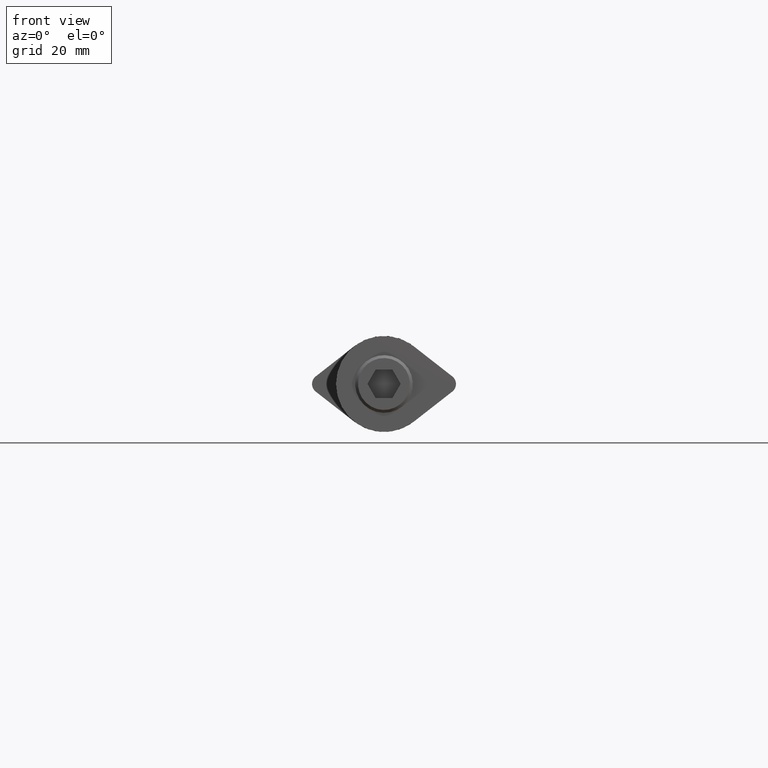
[diagram: clean part render]
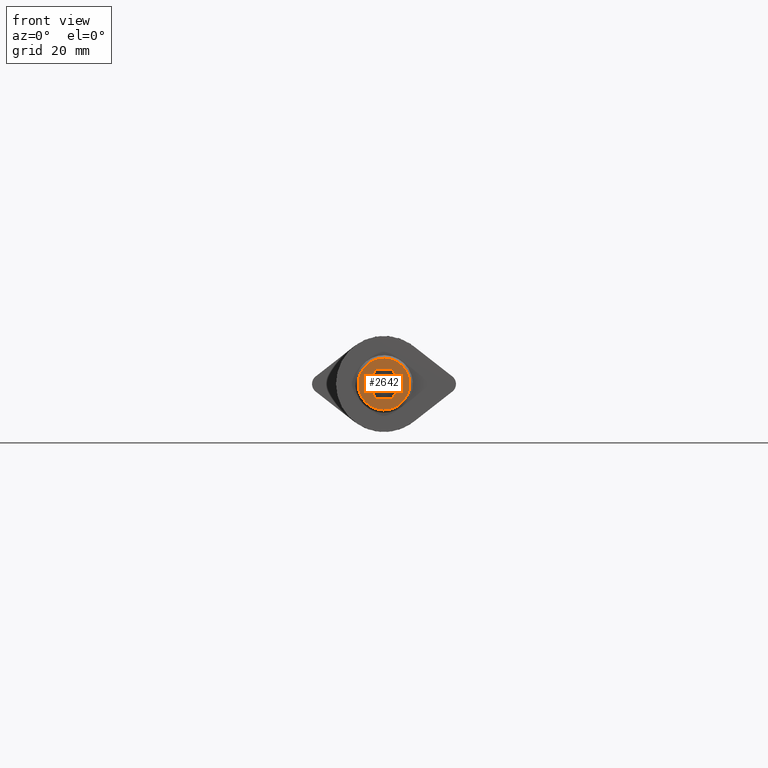
[diagram: same view with one face highlighted and labeled with its STEP entity id]
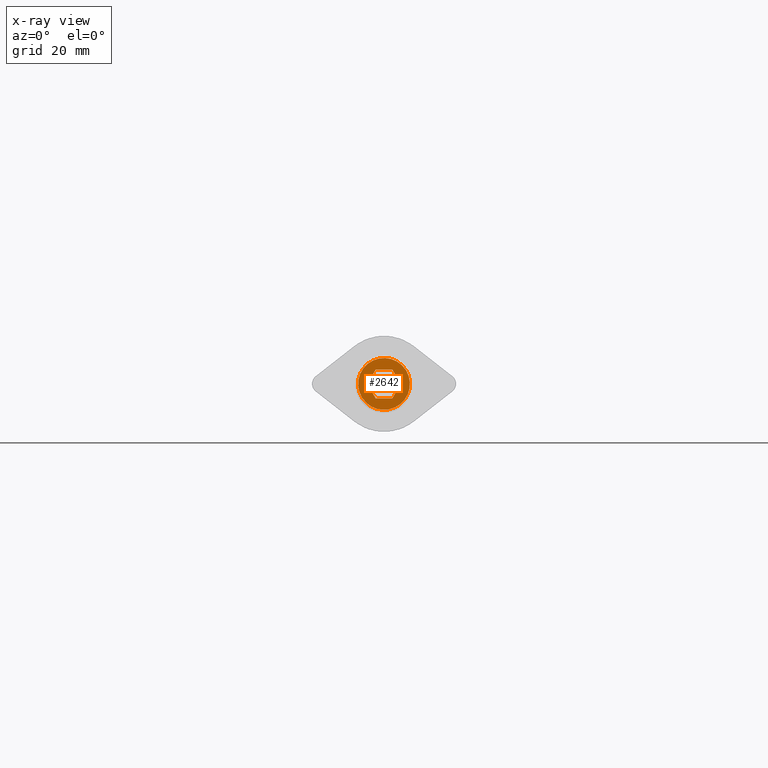
[diagram: x-ray of the same camera — body ghosted, the highlighted face saturated]
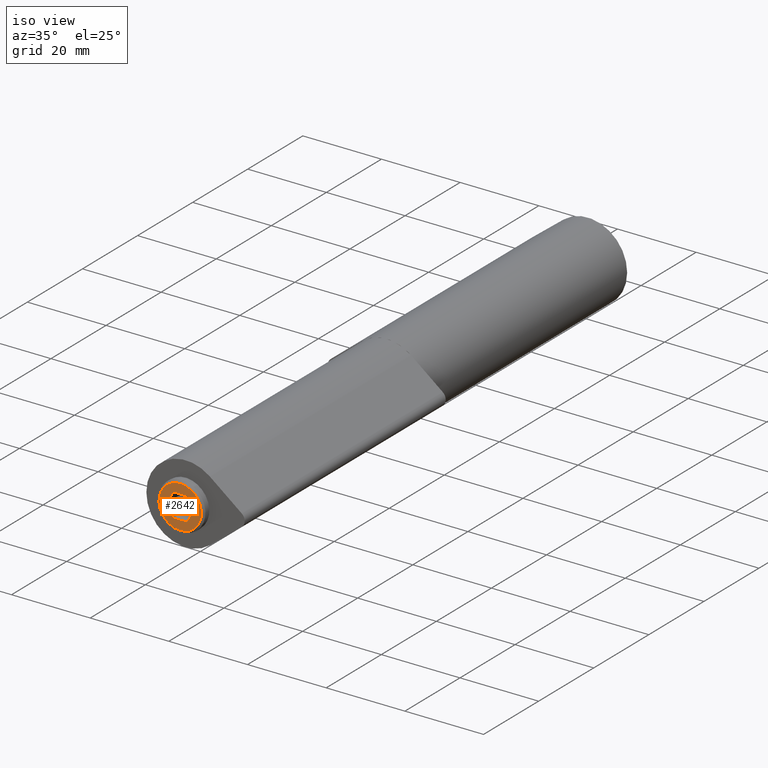
[diagram: same view with one face highlighted and labeled with its STEP entity id]
A machine part, front view. The second image highlights one B-rep face of the part: STEP entity #2642.
The next image is the same camera in x-ray: the body ghosted, the highlighted face saturated — about 0% of this face is hidden behind the body in this view.
A second angle (iso view) of the same face is appended — the face is thin or edge-on in the first view.
In plain terms, the highlighted planar face has unit normal (0, 1, 0).
Its self-contained STEP definition (entity closure, byte-faithful):
#336 = AXIS2_PLACEMENT_3D ( 'NONE', #11183, #347, #4689 ) ;
#347 = DIRECTION ( 'NONE',  ( 0.000000000000000000, 0.000000000000000000, -1.000000000000000000 ) ) ;
#614 = VERTEX_POINT ( 'NONE', #1783 ) ;
#797 = ORIENTED_EDGE ( 'NONE', *, *, #12641, .F. ) ;
#808 = LINE ( 'NONE', #4287, #7573 ) ;
#1408 = ORIENTED_EDGE ( 'NONE', *, *, #7327, .F. ) ;
#1521 = LINE ( 'NONE', #11591, #6224 ) ;
#1783 = CARTESIAN_POINT ( 'NONE',  ( 3.464101615137755719, -2.445125401972828312E-15, 0.000000000000000000 ) ) ;
#2450 = DIRECTION ( 'NONE',  ( -0.000000000000000000, -0.000000000000000000, 1.000000000000000000 ) ) ;
#2642 = ADVANCED_FACE ( 'NONE', ( #10170, #11038 ), #10047, .F. ) ;
#2816 = LINE ( 'NONE', #4753, #8949 ) ;
#3301 = ORIENTED_EDGE ( 'NONE', *, *, #10810, .F. ) ;
#3484 = VERTEX_POINT ( 'NONE', #4878 ) ;
#3585 = DIRECTION ( 'NONE',  ( -1.000000000000000000, 0.000000000000000000, 0.000000000000000000 ) ) ;
#3967 = EDGE_CURVE ( 'NONE', #11399, #5087, #10327, .T. ) ;
#4287 = CARTESIAN_POINT ( 'NONE',  ( 1.732050807568877637, -3.000000000000001776, 0.000000000000000000 ) ) ;
#4377 = CARTESIAN_POINT ( 'NONE',  ( -1.732050807568877193, -3.000000000000001332, 0.000000000000000000 ) ) ;
#4689 = DIRECTION ( 'NONE',  ( -1.000000000000000000, 0.000000000000000000, -0.000000000000000000 ) ) ;
#4753 = CARTESIAN_POINT ( 'NONE',  ( -1.732050807568876971, 3.000000000000000000, 0.000000000000000000 ) ) ;
#4845 = LINE ( 'NONE', #6684, #5844 ) ;
#4851 = CIRCLE ( 'NONE', #5019, 5.400000000000000355 ) ;
#4878 = CARTESIAN_POINT ( 'NONE',  ( -5.400000000000000355, 0.000000000000000000, 0.000000000000000000 ) ) ;
#5019 = AXIS2_PLACEMENT_3D ( 'NONE', #10045, #2450, #3585 ) ;
#5082 = DIRECTION ( 'NONE',  ( -0.5000000000000001110, 0.8660254037844385966, 0.000000000000000000 ) ) ;
#5087 = VERTEX_POINT ( 'NONE', #10792 ) ;
#5844 = VECTOR ( 'NONE', #10025, 1000.000000000000114 ) ;
#5857 = CARTESIAN_POINT ( 'NONE',  ( -3.464101615137754830, -2.150131244289460771E-16, 0.000000000000000000 ) ) ;
#6021 = EDGE_CURVE ( 'NONE', #7081, #9875, #7938, .T. ) ;
#6224 = VECTOR ( 'NONE', #5082, 1000.000000000000000 ) ;
#6550 = CARTESIAN_POINT ( 'NONE',  ( 1.732050807568876527, 3.000000000000000000, 0.000000000000000000 ) ) ;
#6684 = CARTESIAN_POINT ( 'NONE',  ( -3.464101615137754830, -2.150131244289460771E-16, 0.000000000000000000 ) ) ;
#7081 = VERTEX_POINT ( 'NONE', #6550 ) ;
#7287 = VECTOR ( 'NONE', #11890, 1000.000000000000000 ) ;
#7327 = EDGE_CURVE ( 'NONE', #614, #7081, #1521, .T. ) ;
#7573 = VECTOR ( 'NONE', #7685, 1000.000000000000227 ) ;
#7685 = DIRECTION ( 'NONE',  ( 0.5000000000000002220, 0.8660254037844384856, 0.000000000000000000 ) ) ;
#7921 = DIRECTION ( 'NONE',  ( -0.5000000000000001110, -0.8660254037844385966, 0.000000000000000000 ) ) ;
#7938 = LINE ( 'NONE', #9530, #8981 ) ;
#8109 = EDGE_LOOP ( 'NONE', ( #797, #11738, #3301, #12047, #9651, #1408 ) ) ;
#8454 = DIRECTION ( 'NONE',  ( -1.000000000000000000, 0.000000000000000000, 0.000000000000000000 ) ) ;
#8949 = VECTOR ( 'NONE', #7921, 1000.000000000000000 ) ;
#8981 = VECTOR ( 'NONE', #8454, 1000.000000000000000 ) ;
#9473 = EDGE_CURVE ( 'NONE', #9875, #11916, #2816, .T. ) ;
#9530 = CARTESIAN_POINT ( 'NONE',  ( 1.732050807568876527, 3.000000000000000000, 0.000000000000000000 ) ) ;
#9651 = ORIENTED_EDGE ( 'NONE', *, *, #6021, .F. ) ;
#9685 = CARTESIAN_POINT ( 'NONE',  ( -1.732050807568877193, -3.000000000000001332, 0.000000000000000000 ) ) ;
#9875 = VERTEX_POINT ( 'NONE', #12989 ) ;
#10025 = DIRECTION ( 'NONE',  ( 0.4999999999999998890, -0.8660254037844387076, 0.000000000000000000 ) ) ;
#10045 = CARTESIAN_POINT ( 'NONE',  ( 0.000000000000000000, 0.000000000000000000, 0.000000000000000000 ) ) ;
#10047 = PLANE ( 'NONE',  #336 ) ;
#10170 = FACE_OUTER_BOUND ( 'NONE', #12220, .T. ) ;
#10250 = EDGE_CURVE ( 'NONE', #3484, #3484, #4851, .T. ) ;
#10327 = LINE ( 'NONE', #9685, #7287 ) ;
#10792 = CARTESIAN_POINT ( 'NONE',  ( 1.732050807568877859, -3.000000000000001776, 0.000000000000000000 ) ) ;
#10810 = EDGE_CURVE ( 'NONE', #11916, #11399, #4845, .T. ) ;
#11038 = FACE_BOUND ( 'NONE', #8109, .T. ) ;
#11183 = CARTESIAN_POINT ( 'NONE',  ( 0.000000000000000000, 0.000000000000000000, 0.000000000000000000 ) ) ;
#11399 = VERTEX_POINT ( 'NONE', #4377 ) ;
#11564 = ORIENTED_EDGE ( 'NONE', *, *, #10250, .T. ) ;
#11591 = CARTESIAN_POINT ( 'NONE',  ( 3.464101615137755719, -2.445125401972828312E-15, 0.000000000000000000 ) ) ;
#11738 = ORIENTED_EDGE ( 'NONE', *, *, #3967, .F. ) ;
#11890 = DIRECTION ( 'NONE',  ( 1.000000000000000000, -1.251928832280966188E-16, 0.000000000000000000 ) ) ;
#11916 = VERTEX_POINT ( 'NONE', #5857 ) ;
#12047 = ORIENTED_EDGE ( 'NONE', *, *, #9473, .F. ) ;
#12220 = EDGE_LOOP ( 'NONE', ( #11564 ) ) ;
#12641 = EDGE_CURVE ( 'NONE', #5087, #614, #808, .T. ) ;
#12989 = CARTESIAN_POINT ( 'NONE',  ( -1.732050807568876971, 3.000000000000000000, 0.000000000000000000 ) ) ;